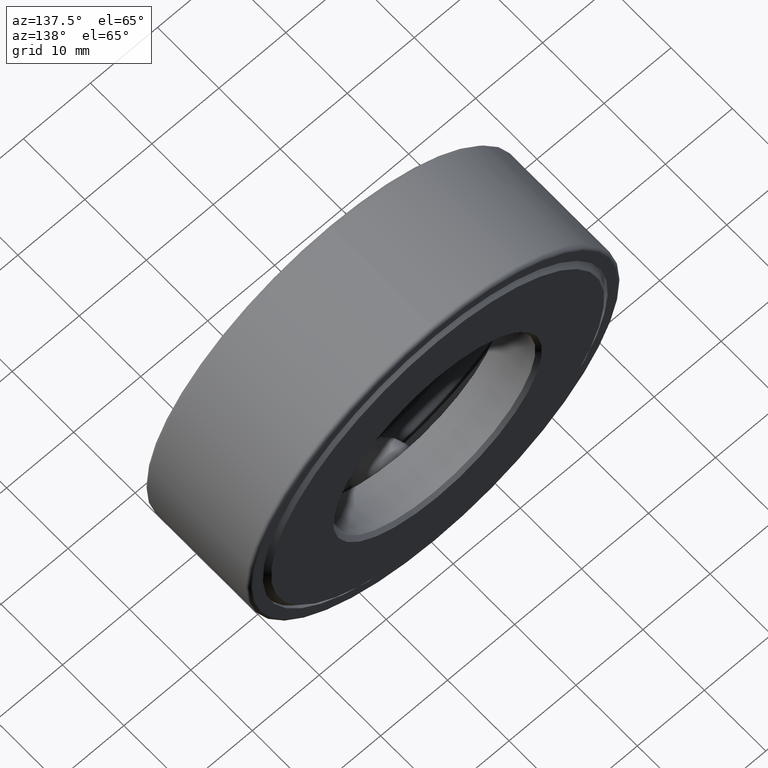
[diagram: clean part render]
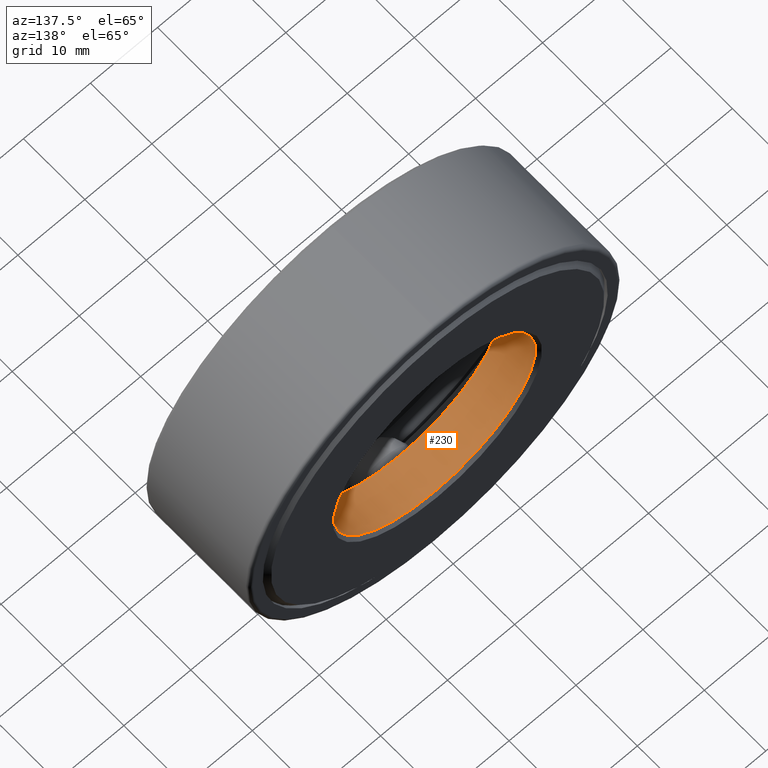
[diagram: same view with one face highlighted and labeled with its STEP entity id]
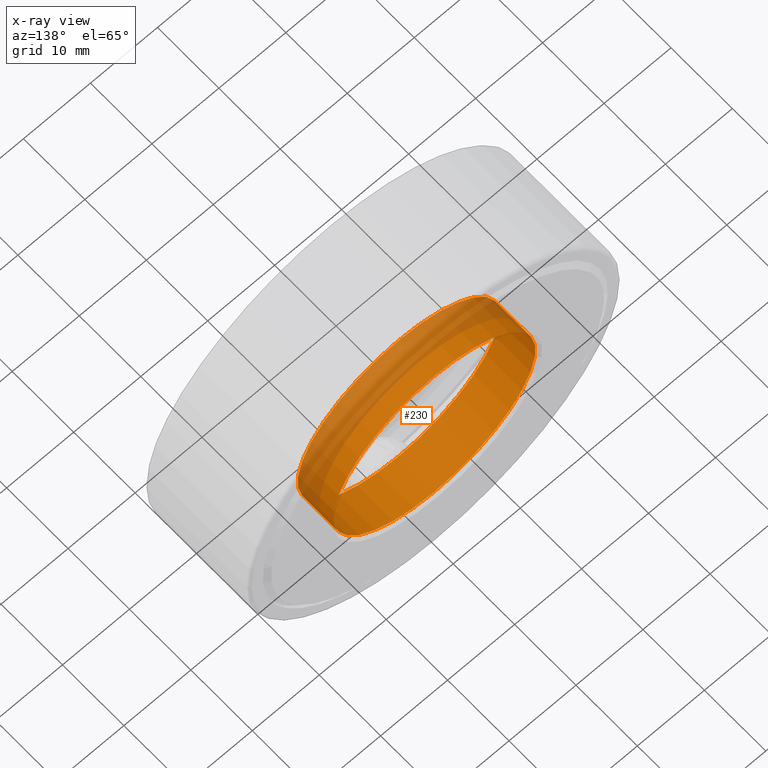
[diagram: x-ray of the same camera — body ghosted, the highlighted face saturated]
A machine part, auxiliary view. The second image highlights one B-rep face of the part: STEP entity #230.
The next image is the same camera in x-ray: the body ghosted, the highlighted face saturated — about 31% of this face is hidden behind the body in this view.
In plain terms, the highlighted cylindrical surface (bore or boss wall) has radius 15.0812 mm, axis along (-0, 1, -0).
Its self-contained STEP definition (entity closure, byte-faithful):
#10 = AXIS2_PLACEMENT_3D ( 'NONE', #183, #483, #520 ) ;
#23 = VERTEX_POINT ( 'NONE', #326 ) ;
#33 = CYLINDRICAL_SURFACE ( 'NONE', #403, 0.5937500000000000000 ) ;
#36 = EDGE_CURVE ( 'NONE', #23, #23, #82, .T. ) ;
#82 = CIRCLE ( 'NONE', #10, 0.5937500000000000000 ) ;
#96 = EDGE_CURVE ( 'NONE', #518, #518, #387, .T. ) ;
#122 = FACE_OUTER_BOUND ( 'NONE', #443, .T. ) ;
#146 = CARTESIAN_POINT ( 'NONE',  ( 0.0000000000000000000, 0.0000000000000000000, 0.0000000000000000000 ) ) ;
#181 = CARTESIAN_POINT ( 'NONE',  ( 0.0000000000000000000, 0.6674999999999998700, 0.5937500000000000000 ) ) ;
#183 = CARTESIAN_POINT ( 'NONE',  ( 0.0000000000000000000, 0.4375000000000000000, 0.0000000000000000000 ) ) ;
#219 = DIRECTION ( 'NONE',  ( -0.0000000000000000000, 1.000000000000000000, -0.0000000000000000000 ) ) ;
#230 = ADVANCED_FACE ( 'NONE', ( #515, #122 ), #33, .F. ) ;
#279 = ORIENTED_EDGE ( 'NONE', *, *, #36, .F. ) ;
#295 = DIRECTION ( 'NONE',  ( 0.0000000000000000000, 0.0000000000000000000, 1.000000000000000000 ) ) ;
#326 = CARTESIAN_POINT ( 'NONE',  ( 0.0000000000000000000, 0.4375000000000000000, 0.5937500000000000000 ) ) ;
#341 = DIRECTION ( 'NONE',  ( -0.0000000000000000000, 1.000000000000000000, -0.0000000000000000000 ) ) ;
#344 = CARTESIAN_POINT ( 'NONE',  ( 0.0000000000000000000, 0.6674999999999998700, 0.0000000000000000000 ) ) ;
#346 = DIRECTION ( 'NONE',  ( 0.0000000000000000000, 0.0000000000000000000, 1.000000000000000000 ) ) ;
#387 = CIRCLE ( 'NONE', #430, 0.5937500000000000000 ) ;
#403 = AXIS2_PLACEMENT_3D ( 'NONE', #146, #219, #346 ) ;
#430 = AXIS2_PLACEMENT_3D ( 'NONE', #344, #341, #295 ) ;
#443 = EDGE_LOOP ( 'NONE', ( #279 ) ) ;
#483 = DIRECTION ( 'NONE',  ( -0.0000000000000000000, 1.000000000000000000, -0.0000000000000000000 ) ) ;
#515 = FACE_OUTER_BOUND ( 'NONE', #544, .T. ) ;
#518 = VERTEX_POINT ( 'NONE', #181 ) ;
#520 = DIRECTION ( 'NONE',  ( 0.0000000000000000000, 0.0000000000000000000, 1.000000000000000000 ) ) ;
#531 = ORIENTED_EDGE ( 'NONE', *, *, #96, .T. ) ;
#544 = EDGE_LOOP ( 'NONE', ( #531 ) ) ;